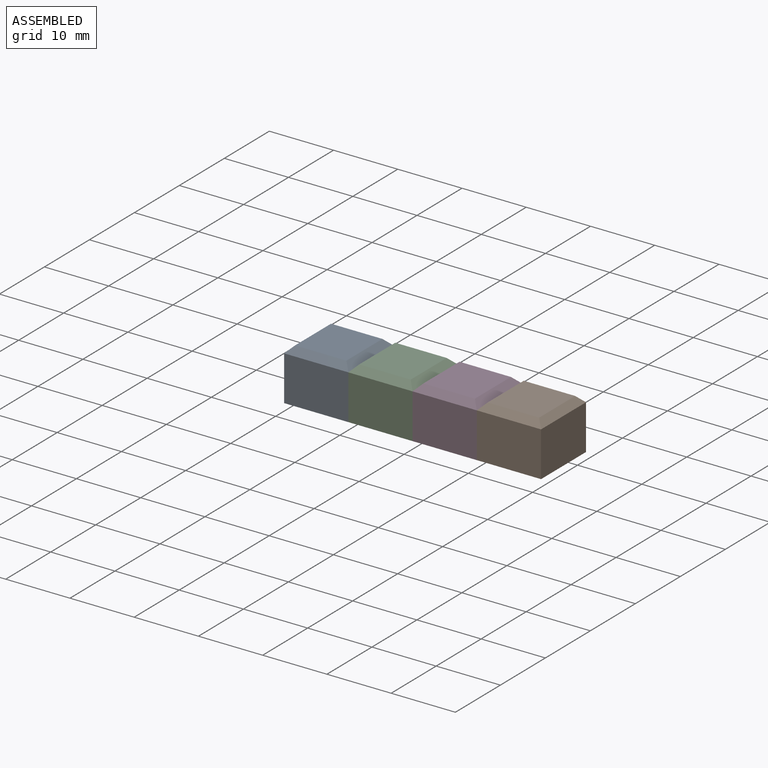
[diagram: assembled view]
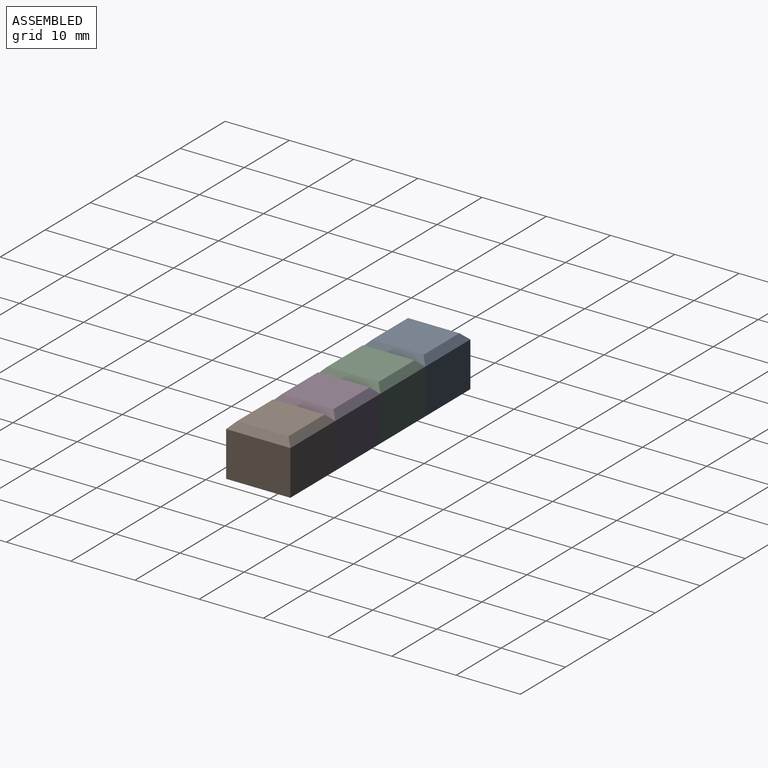
[diagram: assembled view, second angle]
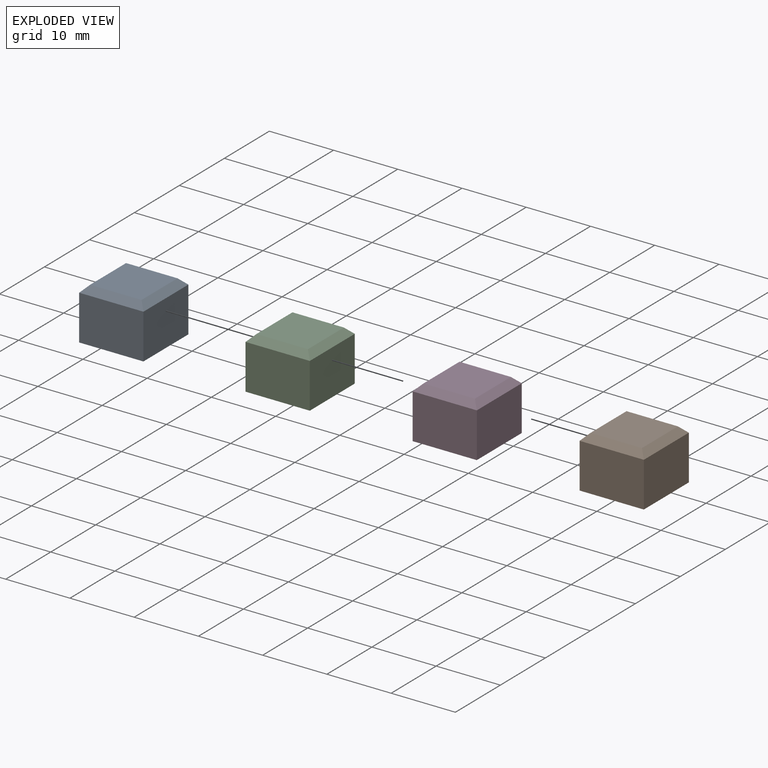
[diagram: exploded view]
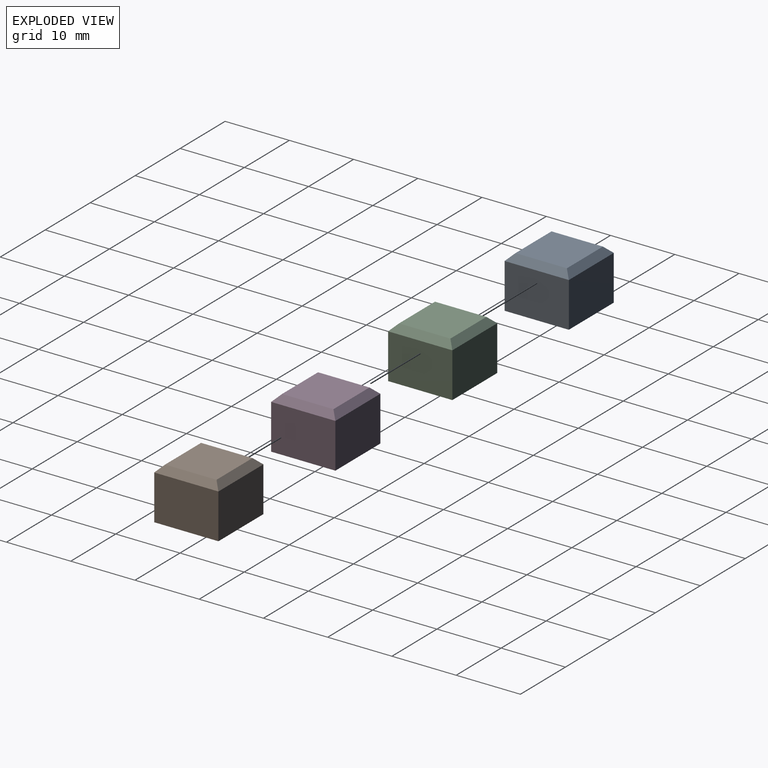
[diagram: exploded view, second angle]
ASSEMBLY  parts=4 mates=3
PART A: 10 faces, bbox 10x10x8 mm
  f0: plane 10x7mm, normal (0,1,0), area 70mm2, adj f1,f3,f5,f9
  f1: plane 10x7mm, normal (-1,0,0), area 70mm2, adj f0,f2,f5,f7
  f2: plane 10x7mm, normal (0,-1,0), area 70mm2, adj f1,f3,f5,f6
  f3: plane 10x7mm, normal (1,0,0), area 70mm2, adj f0,f2,f5,f8
  f4: plane 8x8mm, normal (0,0,1), area 64mm2, adj f6,f7,f8,f9
  f5: plane 10x10mm, normal (0,0,-1), area 100mm2, adj f0,f1,f2,f3
  f6: plane 10x1mm, normal (0,-0.71,0.71), area 12.7mm2, adj f2,f4,f7,f8
  f7: plane 10x1mm, normal (-0.71,0,0.71), area 12.7mm2, adj f1,f4,f6,f9
  f8: plane 10x1mm, normal (0.71,0,0.71), area 12.7mm2, adj f3,f4,f6,f9
  f9: plane 10x1mm, normal (0,0.71,0.71), area 12.7mm2, adj f0,f4,f7,f8
PART B: same geometry as A
PART C: same geometry as A
PART D: same geometry as A
PLACE A t=(11.82,12.76,-8.41)mm
PLACE B t=(41.82,12.76,-8.41)mm
PLACE C t=(21.82,12.76,-8.41)mm
PLACE D t=(31.82,12.76,-8.41)mm
MATE fastened C.f3 <-> D.f1  axis (1,0,0) through (-10.61,17.76,-4.91)mm
MATE fastened A.f3 <-> C.f1  axis (1,0,0) through (-20.61,17.76,-4.91)mm
MATE fastened D.f3 <-> B.f1  axis (1,0,0) through (-0.61,17.76,-4.91)mm
